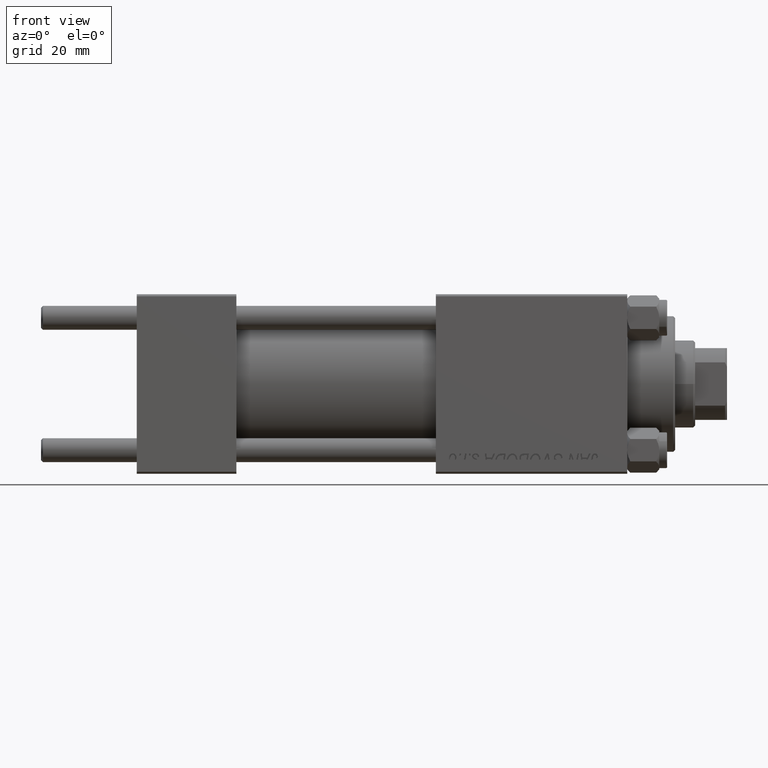
[diagram: clean part render]
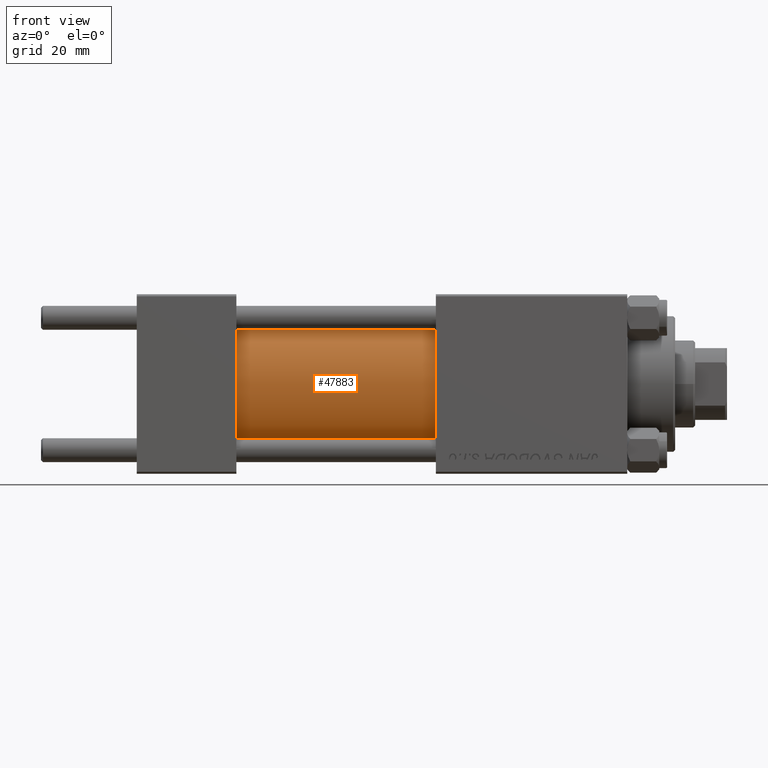
[diagram: same view with one face highlighted and labeled with its STEP entity id]
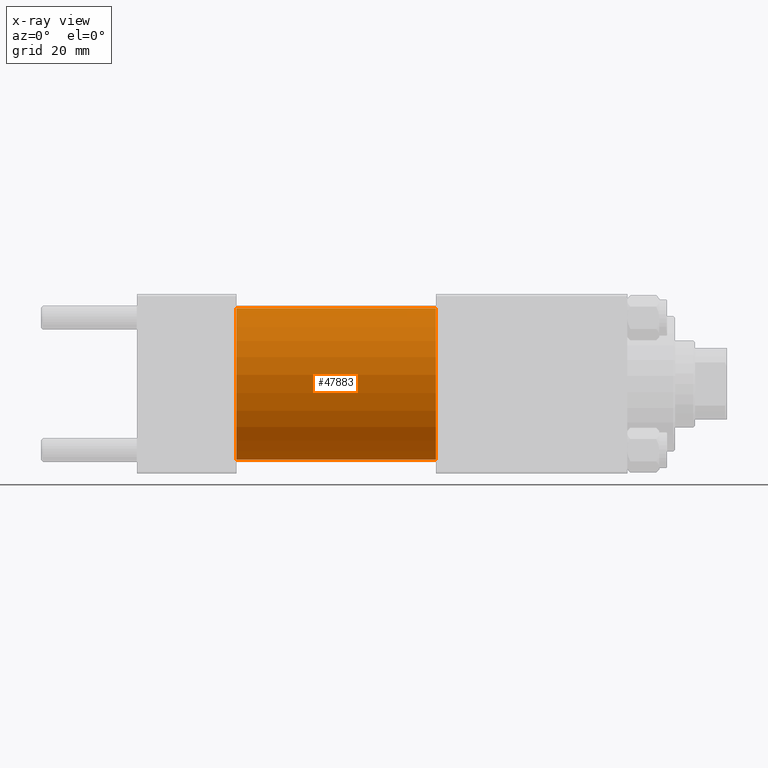
[diagram: x-ray of the same camera — body ghosted, the highlighted face saturated]
A machine part, front view. The second image highlights one B-rep face of the part: STEP entity #47883.
The next image is the same camera in x-ray: the body ghosted, the highlighted face saturated — about 0% of this face is hidden behind the body in this view.
In plain terms, the highlighted cylindrical surface (partial cylindrical patch) has radius 19 mm, axis along (-1, -0, -0).
Its self-contained STEP definition (entity closure, byte-faithful):
#224 = EDGE_LOOP ( 'NONE', ( #9391, #5272, #29149, #40043 ) ) ;
#639 = CIRCLE ( 'NONE', #48942, 19.00000000000000000 ) ;
#1095 = VERTEX_POINT ( 'NONE', #27798 ) ;
#1451 = EDGE_CURVE ( 'NONE', #19527, #1095, #11370, .T. ) ;
#2766 = EDGE_CURVE ( 'NONE', #45265, #23143, #4774, .T. ) ;
#4774 = LINE ( 'NONE', #13313, #31156 ) ;
#4816 = AXIS2_PLACEMENT_3D ( 'NONE', #23565, #43187, #19529 ) ;
#5061 = AXIS2_PLACEMENT_3D ( 'NONE', #12662, #31855, #12182 ) ;
#5272 = ORIENTED_EDGE ( 'NONE', *, *, #22392, .F. ) ;
#6417 = EDGE_CURVE ( 'NONE', #23143, #1095, #639, .T. ) ;
#9391 = ORIENTED_EDGE ( 'NONE', *, *, #1451, .F. ) ;
#10508 = CARTESIAN_POINT ( 'NONE',  ( 25.00000000000000000, 0.000000000000000000, 19.00000000000000000 ) ) ;
#11370 = LINE ( 'NONE', #18933, #19831 ) ;
#12182 = DIRECTION ( 'NONE',  ( 0.000000000000000000, 0.000000000000000000, -1.000000000000000000 ) ) ;
#12433 = CYLINDRICAL_SURFACE ( 'NONE', #4816, 19.00000000000000000 ) ;
#12450 = CARTESIAN_POINT ( 'NONE',  ( 75.00000000000001421, 0.000000000000000000, 19.00000000000000000 ) ) ;
#12662 = CARTESIAN_POINT ( 'NONE',  ( 75.00000000000001421, 0.000000000000000000, 0.000000000000000000 ) ) ;
#13313 = CARTESIAN_POINT ( 'NONE',  ( 75.00000000000001421, 0.000000000000000000, 19.00000000000000000 ) ) ;
#15916 = CARTESIAN_POINT ( 'NONE',  ( 75.00000000000001421, 2.326828918379970970E-15, -19.00000000000000000 ) ) ;
#18933 = CARTESIAN_POINT ( 'NONE',  ( 75.00000000000001421, 2.326828918379970970E-15, -19.00000000000000000 ) ) ;
#19527 = VERTEX_POINT ( 'NONE', #15916 ) ;
#19529 = DIRECTION ( 'NONE',  ( 0.000000000000000000, 0.000000000000000000, 1.000000000000000000 ) ) ;
#19783 = DIRECTION ( 'NONE',  ( 0.000000000000000000, 0.000000000000000000, 1.000000000000000000 ) ) ;
#19831 = VECTOR ( 'NONE', #26769, 1000.000000000000000 ) ;
#22392 = EDGE_CURVE ( 'NONE', #45265, #19527, #38895, .T. ) ;
#23143 = VERTEX_POINT ( 'NONE', #10508 ) ;
#23343 = CARTESIAN_POINT ( 'NONE',  ( 25.00000000000000000, 0.000000000000000000, 0.000000000000000000 ) ) ;
#23565 = CARTESIAN_POINT ( 'NONE',  ( 75.00000000000001421, 0.000000000000000000, 0.000000000000000000 ) ) ;
#26769 = DIRECTION ( 'NONE',  ( -1.000000000000000000, -0.000000000000000000, -0.000000000000000000 ) ) ;
#27798 = CARTESIAN_POINT ( 'NONE',  ( 25.00000000000000000, 2.326828918379970970E-15, -19.00000000000000000 ) ) ;
#29149 = ORIENTED_EDGE ( 'NONE', *, *, #2766, .T. ) ;
#31156 = VECTOR ( 'NONE', #47098, 1000.000000000000000 ) ;
#31855 = DIRECTION ( 'NONE',  ( 1.000000000000000000, 0.000000000000000000, 0.000000000000000000 ) ) ;
#38693 = FACE_OUTER_BOUND ( 'NONE', #224, .T. ) ;
#38707 = DIRECTION ( 'NONE',  ( 1.000000000000000000, -0.000000000000000000, 0.000000000000000000 ) ) ;
#38895 = CIRCLE ( 'NONE', #5061, 19.00000000000000000 ) ;
#40043 = ORIENTED_EDGE ( 'NONE', *, *, #6417, .T. ) ;
#43187 = DIRECTION ( 'NONE',  ( -1.000000000000000000, -0.000000000000000000, -0.000000000000000000 ) ) ;
#45265 = VERTEX_POINT ( 'NONE', #12450 ) ;
#47098 = DIRECTION ( 'NONE',  ( -1.000000000000000000, -0.000000000000000000, -0.000000000000000000 ) ) ;
#47883 = ADVANCED_FACE ( 'NONE', ( #38693 ), #12433, .T. ) ;
#48942 = AXIS2_PLACEMENT_3D ( 'NONE', #23343, #38707, #19783 ) ;